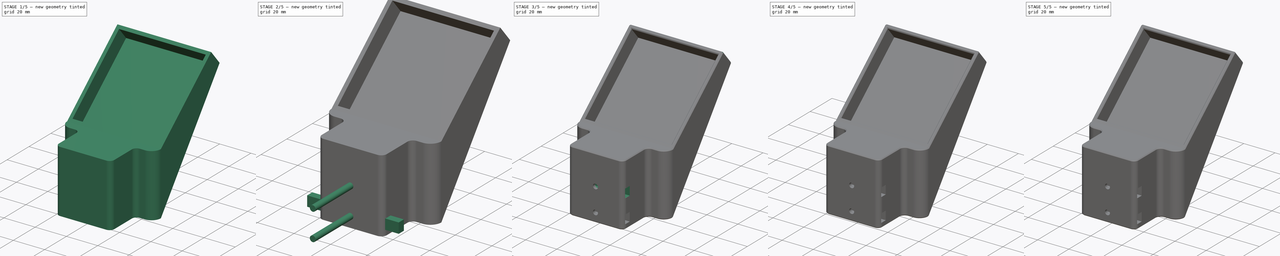
[diagram: build sequence overview — one tinted view per stage of 5, left to right]
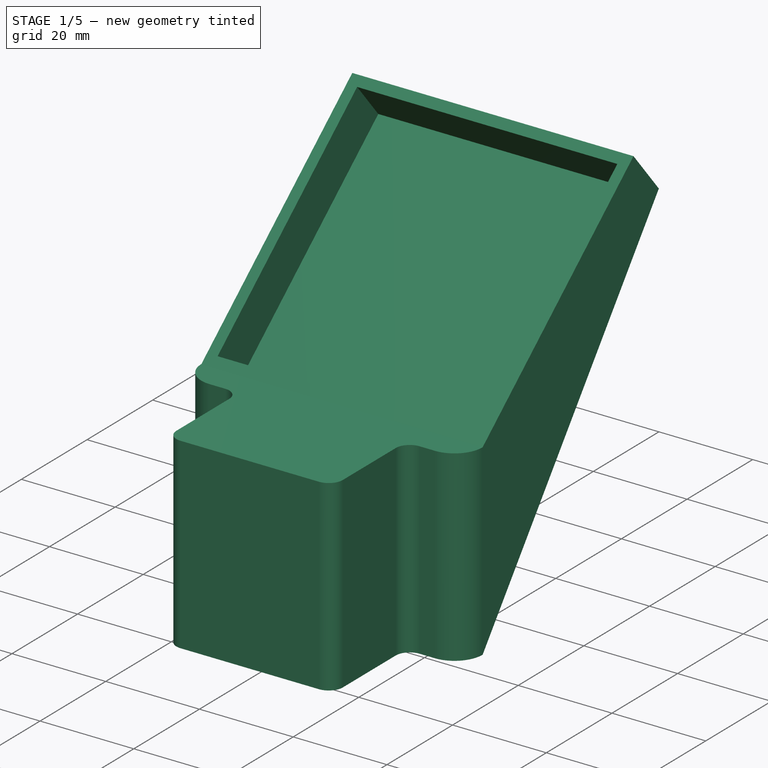
[diagram: stage 1 of 5 — iso view after this stage's code; geometry added in this stage tinted green]
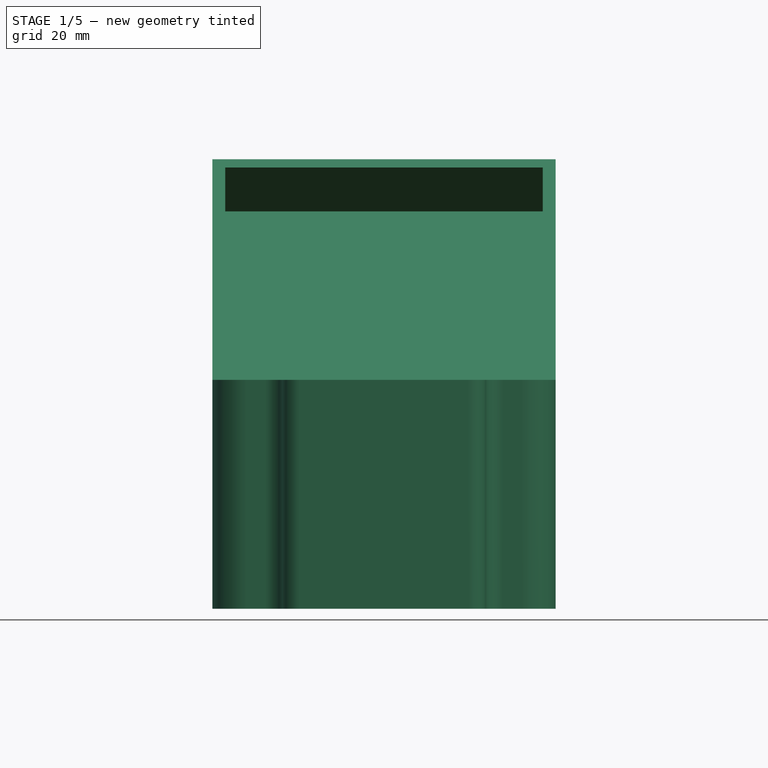
[diagram: stage 1 of 5 — front view after this stage's code; geometry added in this stage tinted green]
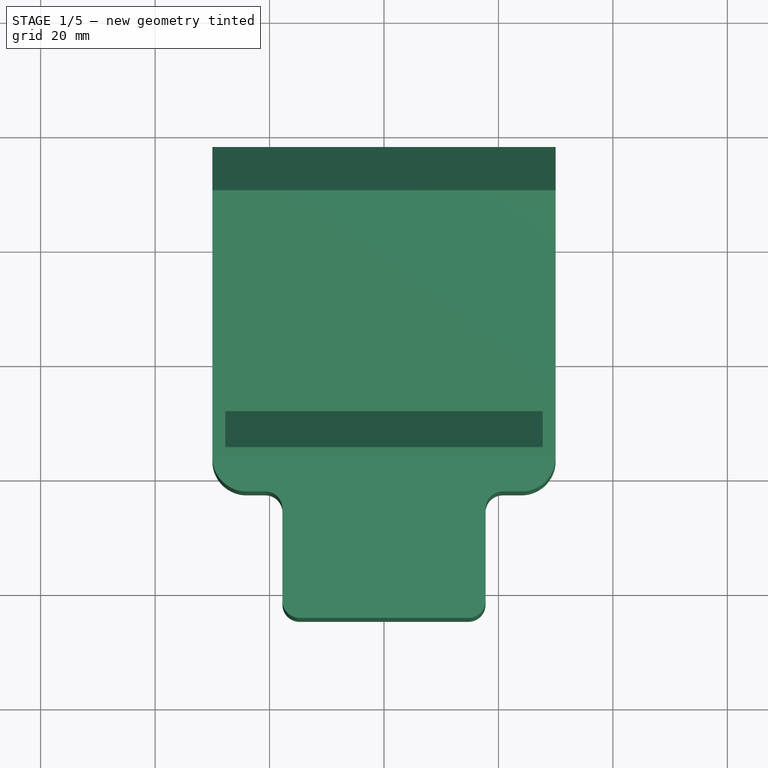
[diagram: stage 1 of 5 — top view after this stage's code; geometry added in this stage tinted green]
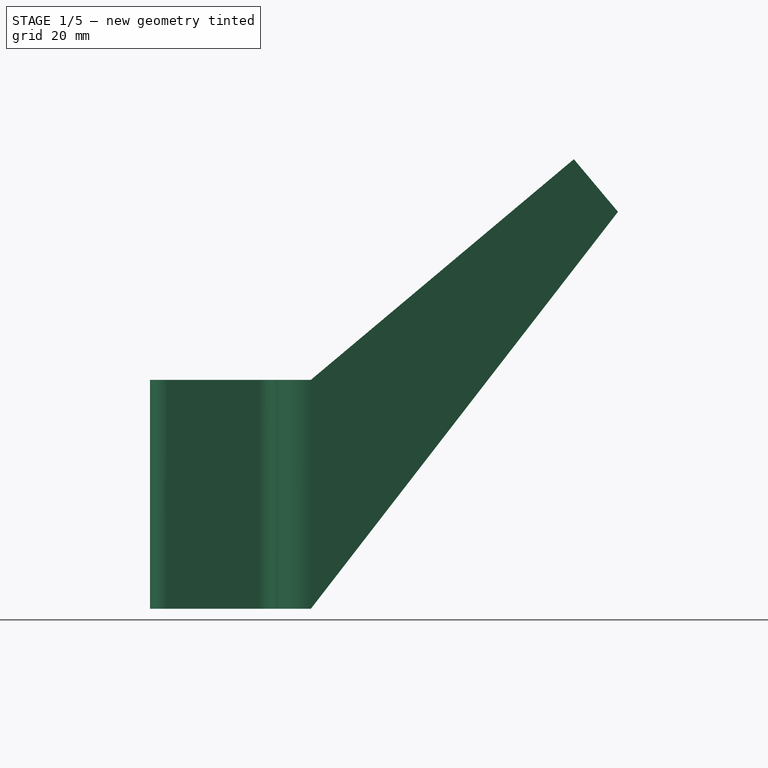
[diagram: stage 1 of 5 — right view after this stage's code; geometry added in this stage tinted green]
FCSTD DOCUMENT  (FreeCAD 0.18R16093 (Git))
Label: tmp_ctl_holder
License: All rights reserved
LicenseURL: http://en.wikipedia.org/wiki/All_rights_reserved
objects: Sketcher::SketchObject×6, Part::MultiFuse×4, Part::Cylinder×3, PartDesign::FeatureBase×3, PartDesign::Body×3, Part::Extrusion×2, Part::Cut×2, Part::Chamfer×2, Part::Box×1, Part::Mirroring×1, Part::Fillet×1, PartDesign::ShapeBinder×1, PartDesign::Line×1, PartDesign::Plane×1, PartDesign::Pad×1, PartDesign::Pocket×1
note: 35 computed .brp shape members not serialized (recipe doc carries the construction recipe); baked Part::Feature solids carry a one-line shape summary decoded from their .brp

FEATURE [Sketcher::SketchObject] Sketch001
  MapMode = 5
  Support = -> [XY_Plane]
  sketch-geometry (12):
    g0: ArcOfCircle CenterX=-14.75 CenterY=-21.65 CenterZ=0 NormalX=0 NormalY=0 NormalZ=1 AngleXU=0 Radius=3 StartAngle=3.14159 EndAngle=4.71239
    g1: ArcOfCircle CenterX=14.75 CenterY=-21.65 CenterZ=0 NormalX=0 NormalY=0 NormalZ=1 AngleXU=0 Radius=3 StartAngle=4.71239 EndAngle=6.28319
    g2: LineSegment StartX=-14.75 StartY=-24.65 StartZ=0 EndX=14.75 EndY=-24.65 EndZ=0
    g3: LineSegment StartX=-17.75 StartY=-21.65 StartZ=0 EndX=-17.75 EndY=-5.65 EndZ=0
    g4: LineSegment StartX=17.75 StartY=-21.65 StartZ=0 EndX=17.75 EndY=-5.65 EndZ=0
    g5: ArcOfCircle CenterX=-20.7482 CenterY=-5.54638 CenterZ=0 NormalX=0 NormalY=0 NormalZ=1 AngleXU=0 Radius=3 StartAngle=6.24864 EndAngle=7.85398
    g6: ArcOfCircle CenterX=20.7482 CenterY=-5.54638 CenterZ=0 NormalX=0 NormalY=0 NormalZ=1 AngleXU=0 Radius=3 StartAngle=1.5708 EndAngle=3.17614
    g7: ArcOfCircle CenterX=-24 CenterY=3.45362 CenterZ=0 NormalX=0 NormalY=0 NormalZ=1 AngleXU=0 Radius=6 StartAngle=3.14159 EndAngle=4.71239
    g8: ArcOfCircle CenterX=24 CenterY=3.45362 CenterZ=0 NormalX=0 NormalY=0 NormalZ=1 AngleXU=0 Radius=6 StartAngle=4.71239 EndAngle=6.28319
    g9: LineSegment StartX=-30 StartY=3.45362 StartZ=0 EndX=30 EndY=3.45362 EndZ=0
    g10: LineSegment StartX=-24 StartY=-2.54638 StartZ=0 EndX=-20.7482 EndY=-2.54638 EndZ=0
    g11: LineSegment StartX=20.7482 StartY=-2.54638 StartZ=0 EndX=24 EndY=-2.54638 EndZ=0
  constraints (36):
    c: Tangent(g2,g0) = -1.5708
    c: Horizontal(g2)
    c: Tangent(g1,g2) = -1.5708
    c: Equal(g0,g1)
    c: Horizontal(g0,g0)
    c: Symmetric(g0,g1,g-2)
    c: Radius(g0) = 3
    c: DistanceX(g0,g1) = 35.5
    c: Vertical(g3)
    c: Coincident(g3,g0)
    c: Coincident(g1,g4)
    c: Symmetric(g4,g3,g-2)
    c: Coincident(g6,g4)
    c: Coincident(g5,g3)
    c: Symmetric(g6,g5,g-2)
    c: Radius(g5) = 3
    c: Symmetric(g5,g6,g-2)
    c: DistanceY(g3,g3) = 16
    c: Radius(g7) = 6
    c: Symmetric(g8,g7,g-2)
    c: Coincident(g9,g7)
    c: Coincident(g9,g8)
    c: Horizontal(g9)
    c: DistanceY(g1,g-1) = 24.65
    c: Horizontal(g7,g7)
    c: Coincident(g10,g7)
    c: Coincident(g10,g5)
    c: Horizontal(g10)
    c: DistanceX(g5) = -20.7482
    c: Vertical(g7,g7)
    c: Symmetric(g7,g8,g-2)
    c: Vertical(g5,g5)
    c: Coincident(g11,g6)
    c: Coincident(g11,g8)
    c: Horizontal(g11)
    c: DistanceX(g9,g9) = 60
FEATURE [Part::Extrusion] Extrude001
  Base = -> Sketch001
  Dir = (0,0,1)
  DirMode = 2
  FaceMakerClass = Part::FaceMakerBullseye
  LengthFwd = 40
  LengthRev = 0
  Solid = true
  Symmetric = false
FEATURE [PartDesign::ShapeBinder] CopyExtrude001
  Placement = pos=(0,0,40) rot=(0,0,1;0rad)
  TraceSupport = false
FEATURE [PartDesign::Line] DatumLine
  AttacherType = Attacher::AttachEngineLine
  MapMode = 29
  Placement = pos=(0,3.45362,40) rot=(0.57735,0.57735,0.57735;2.0944rad)
  Support = -> [CopyExtrude001]
FEATURE [PartDesign::Plane] DatumPlane
  AttachmentOffset = pos=(0,0,0) rot=(0,1,0;0.698132rad)
  Length = 136.517
  MapMode = 3
  Placement = pos=(0,3.45362,40) rot=(0.684791,0.684791,0.249244;3.63013rad)
  ResizeMode = 0
  Support = -> [DatumLine]
  Width = 76.9406
FEATURE [Sketcher::SketchObject] Sketch
  MapMode = 5
  Placement = pos=(0,3.45362,40) rot=(0.684791,0.684791,0.249244;3.63013rad)
  Support = -> [DatumPlane]
  sketch-geometry (4):
    g0: LineSegment StartX=0 StartY=30 StartZ=0 EndX=60 EndY=30 EndZ=0
    g1: LineSegment StartX=60 StartY=30 StartZ=0 EndX=60 EndY=-30 EndZ=0
    g2: LineSegment StartX=60 StartY=-30 StartZ=0 EndX=0 EndY=-30 EndZ=0
    g3: LineSegment StartX=0 StartY=-30 StartZ=0 EndX=0 EndY=30 EndZ=0
  constraints (11):
    c: Coincident(g0,g1)
    c: Coincident(g1,g2)
    c: Coincident(g2,g3)
    c: Coincident(g3,g0)
    c: Horizontal(g0)
    c: Horizontal(g2)
    c: Vertical(g1)
    c: DistanceY(g3,g3) = 60
    c: Equal(g0,g3)
    c: PointOnObject(g-1,g3)
    c: Symmetric(g0,g3,g-1)
FEATURE [PartDesign::FeatureBase] BaseFeature
  BaseFeature = -> Extrude001
FEATURE [Sketcher::SketchObject] Sketch004
  ExternalGeometry = -> [Sketch,BaseFeature]
  MapMode = 5
  Placement = pos=(0,0,0) rot=(0.57735,0.57735,0.57735;2.0944rad)
  Support = -> [YZ_Plane]
  sketch-geometry (4):
    g0: LineSegment StartX=3.45362 StartY=-1.42e-14 StartZ=0 EndX=3.45362 EndY=40 EndZ=0
    g1: LineSegment StartX=3.45362 StartY=40 StartZ=0 EndX=49.4163 EndY=78.5673 EndZ=0
    g2: LineSegment StartX=49.4163 StartY=78.5673 StartZ=0 EndX=57.1297 EndY=69.3747 EndZ=0
    g3: LineSegment StartX=57.1297 StartY=69.3747 StartZ=0 EndX=3.45362 EndY=-1.42e-14 EndZ=0
  constraints (9):
    c: Coincident(g-4,g0)
    c: Coincident(g0,g-4)
    c: Coincident(g0,g1)
    c: Coincident(g1,g-3)
    c: Coincident(g1,g2)
    c: Coincident(g2,g3)
    c: Coincident(g3,g0)
    c: Distance(g2) = 12
    c: Perpendicular(g1,g2)
FEATURE [PartDesign::Pad] Pad
  BaseFeature = -> BaseFeature
  Length = 60
  Length2 = 100
  Midplane = true
  Profile = -> Sketch004
  Type = 0
FEATURE [Sketcher::SketchObject] Sketch005
  ExternalGeometry = -> [DatumLine,Sketch]
  MapMode = 5
  Placement = pos=(0,3.45362,40) rot=(0.684791,0.684791,0.249244;3.63013rad)
  Support = -> [DatumPlane]
  sketch-geometry (4):
    g0: LineSegment StartX=57.75 StartY=-27.75 StartZ=0 EndX=2.25 EndY=-27.75 EndZ=0
    g1: LineSegment StartX=2.25 StartY=-27.75 StartZ=0 EndX=2.25 EndY=27.75 EndZ=0
    g2: LineSegment StartX=2.25 StartY=27.75 StartZ=0 EndX=57.75 EndY=27.75 EndZ=0
    g3: LineSegment StartX=57.75 StartY=27.75 StartZ=0 EndX=57.75 EndY=-27.75 EndZ=0
  constraints (11):
    c: Coincident(g0,g1)
    c: Coincident(g1,g2)
    c: Coincident(g2,g3)
    c: Coincident(g3,g0)
    c: Horizontal(g0)
    c: Horizontal(g2)
    c: DistanceX(g2,g2) = 55.5
    c: Equal(g1,g2)
    c: Equal(g0,g1)
    c: Symmetric(g1,g0,g-1)
    c: DistanceX(g-4,g1) = 2.25
FEATURE [PartDesign::Pocket] Pocket
  BaseFeature = -> Pad
  Length = 10
  Length2 = 100
  Profile = -> Sketch005
  Reversed = true
  Type = 0
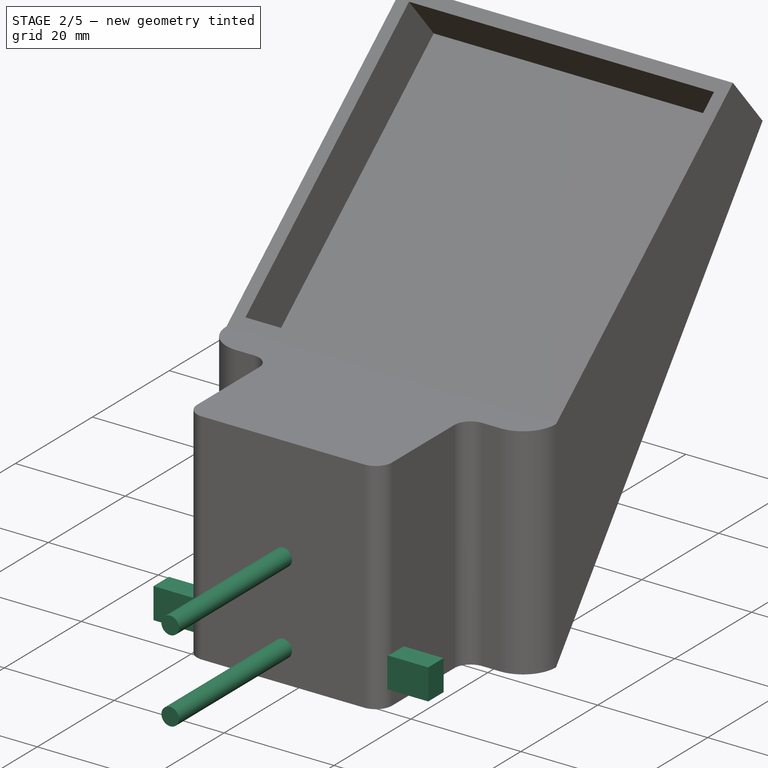
[diagram: stage 2 of 5 — iso view after this stage's code; geometry added in this stage tinted green]
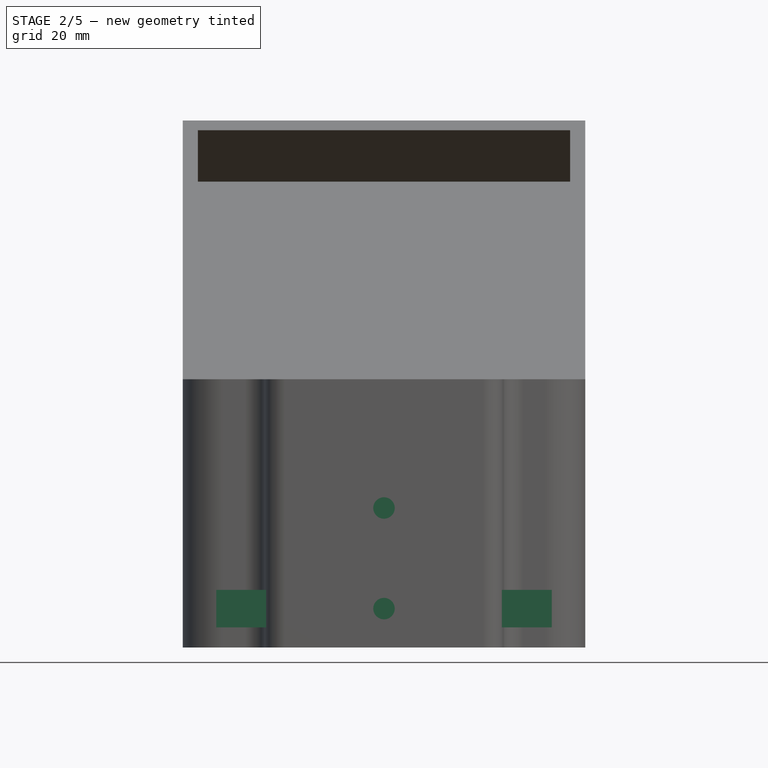
[diagram: stage 2 of 5 — front view after this stage's code; geometry added in this stage tinted green]
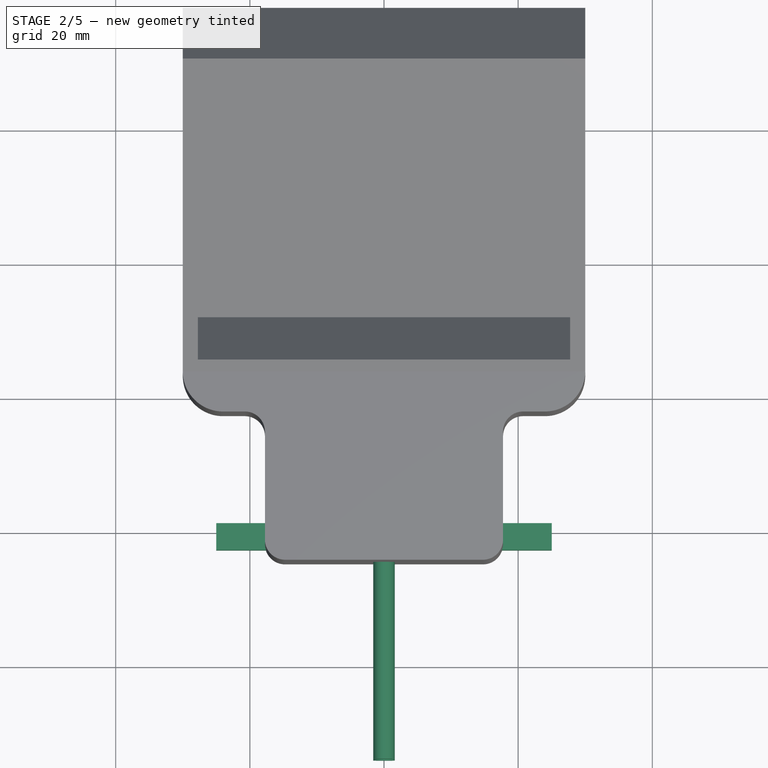
[diagram: stage 2 of 5 — top view after this stage's code; geometry added in this stage tinted green]
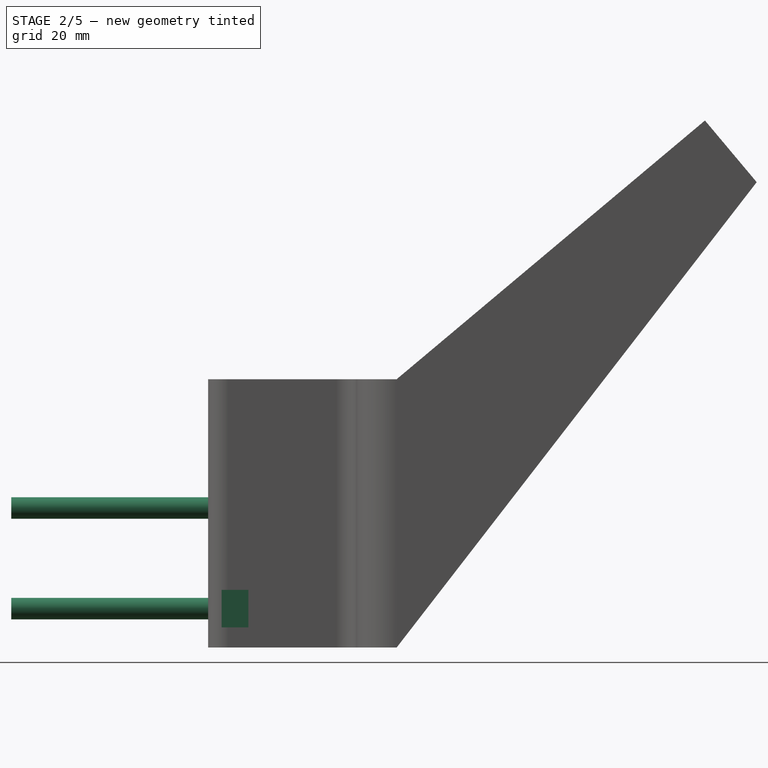
[diagram: stage 2 of 5 — right view after this stage's code; geometry added in this stage tinted green]
FEATURE [Sketcher::SketchObject] Sketch002
  ExternalGeometry = -> [Sketch001]
  MapMode = 5
  Support = -> [XY_Plane]
  sketch-geometry (4):
    g0: LineSegment StartX=-25 StartY=-18.65 StartZ=0 EndX=25 EndY=-18.65 EndZ=0
    g1: LineSegment StartX=25 StartY=-18.65 StartZ=0 EndX=25 EndY=-22.65 EndZ=0
    g2: LineSegment StartX=25 StartY=-22.65 StartZ=0 EndX=-25 EndY=-22.65 EndZ=0
    g3: LineSegment StartX=-25 StartY=-22.65 StartZ=0 EndX=-25 EndY=-18.65 EndZ=0
  constraints (11):
    c: Coincident(g0,g1)
    c: Coincident(g1,g2)
    c: Coincident(g2,g3)
    c: Coincident(g3,g0)
    c: Horizontal(g0)
    c: Vertical(g1)
    c: Vertical(g3)
    c: DistanceY(g-3,g2) = 2
    c: DistanceY(g3,g3) = 4
    c: Symmetric(g2,g1,g-2)
    c: DistanceX(g0,g0) = 50
FEATURE [Part::Extrusion] Extrude002  label="nutspace"
  Base = -> Sketch002
  Dir = (0,0,1)
  DirMode = 2
  FaceMakerClass = Part::FaceMakerBullseye
  LengthFwd = 5.6
  LengthRev = 0
  Placement = pos=(0,0,3) rot=(0,0,1;0rad)
  Solid = true
  Symmetric = false
FEATURE [PartDesign::Body] Body001  label="nutspace2"
  BaseFeature = -> Extrude002
  Group = -> [Clone]
  Origin = -> Origin001
  Placement = pos=(0,0,18) rot=(0,0,1;0rad)
  Tip = -> Clone
  expr: Placement.Base.z = 3 + 15
FEATURE [Sketcher::SketchObject] Sketch003
  MapMode = 5
  Support = -> [XY_Plane]
  sketch-geometry (4):
    g0: ArcOfCircle CenterX=0 CenterY=5.33906 CenterZ=0 NormalX=0 NormalY=0 NormalZ=1 AngleXU=0 Radius=19 StartAngle=0.0413206 EndAngle=3.10027
    g1: ArcOfCircle CenterX=-15.9863 CenterY=6 CenterZ=0 NormalX=0 NormalY=0 NormalZ=1 AngleXU=0 Radius=3 StartAngle=3.10027 EndAngle=4.71239
    g2: ArcOfCircle CenterX=15.9863 CenterY=6 CenterZ=0 NormalX=0 NormalY=0 NormalZ=1 AngleXU=0 Radius=3 StartAngle=4.71239 EndAngle=6.32451
    g3: LineSegment StartX=-15.9863 StartY=3 StartZ=0 EndX=15.9863 EndY=3 EndZ=0
  constraints (10):
    c: Tangent(g1,g0) = -1.5708
    c: Coincident(g2,g0)
    c: Symmetric(g2,g1,g-2)
    c: Horizontal(g0,g0)
    c: Horizontal(g3)
    c: Tangent(g3,g1) = -1.5708
    c: Coincident(g2,g3)
    c: Radius(g2) = 3
    c: DistanceY(g-1,g2) = 3
    c: Radius(g0) = 19
FEATURE [Part::Cylinder] Cylinder002
  Angle = 360
  AttacherType = Attacher::AttachEngine3D
  Height = 40
  Placement = pos=(0,-14,5.8) rot=(1,0,0;1.5708rad)
  Radius = 1.6
  expr: Placement.Base.z = 5.6 / 2 + 3
  expr: Radius = 3.2 / 2
FEATURE [PartDesign::FeatureBase] Clone001
  BaseFeature = -> Cylinder002
  Placement = pos=(0,-14,5.8) rot=(1,0,0;1.5708rad)
FEATURE [PartDesign::Body] Body002
  BaseFeature = -> Cylinder002
  Group = -> [Clone001]
  Origin = -> Origin002
  Placement = pos=(0,0,15) rot=(0,0,1;0rad)
  Tip = -> Clone001
FEATURE [Part::MultiFuse] Fusion003  label="M3_screw_holes"
  Shapes = -> [Cylinder002,Body002]
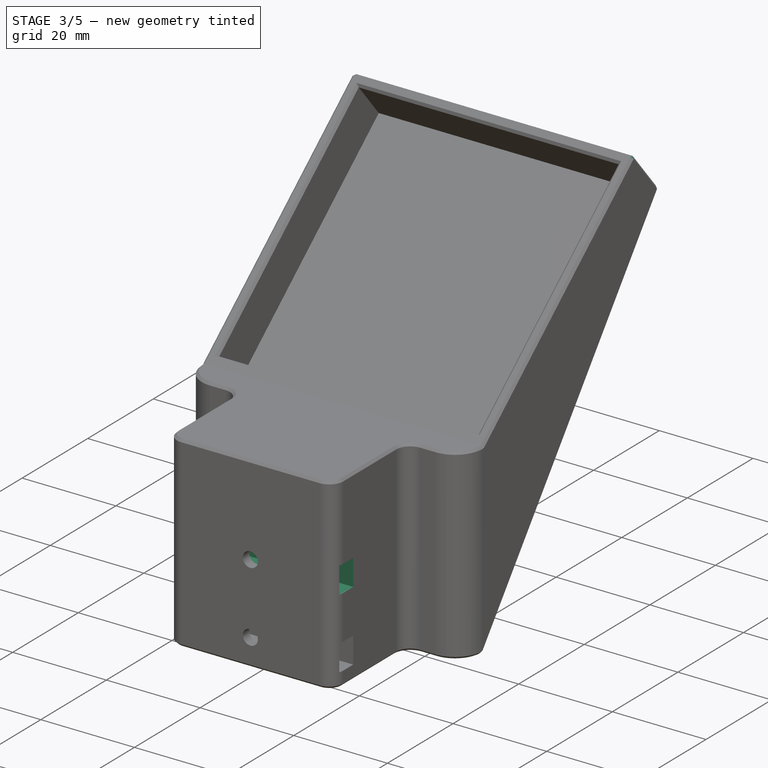
[diagram: stage 3 of 5 — iso view after this stage's code; geometry added in this stage tinted green]
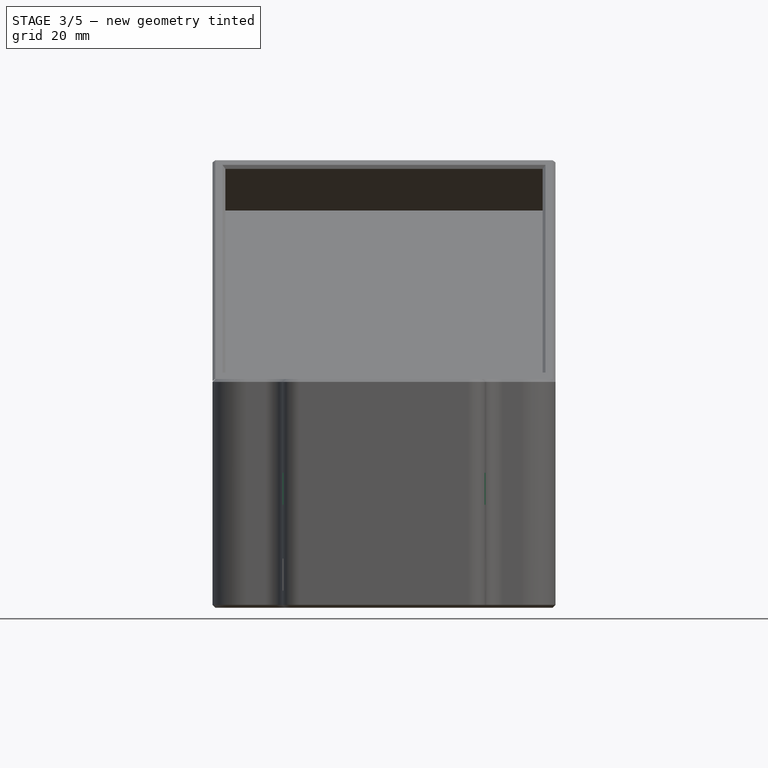
[diagram: stage 3 of 5 — front view after this stage's code; geometry added in this stage tinted green]
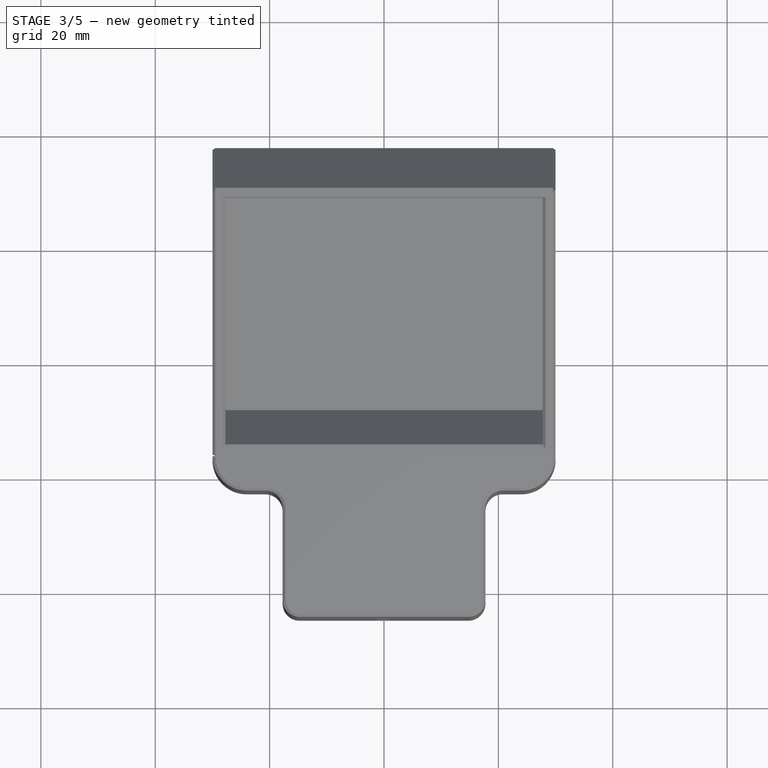
[diagram: stage 3 of 5 — top view after this stage's code; geometry added in this stage tinted green]
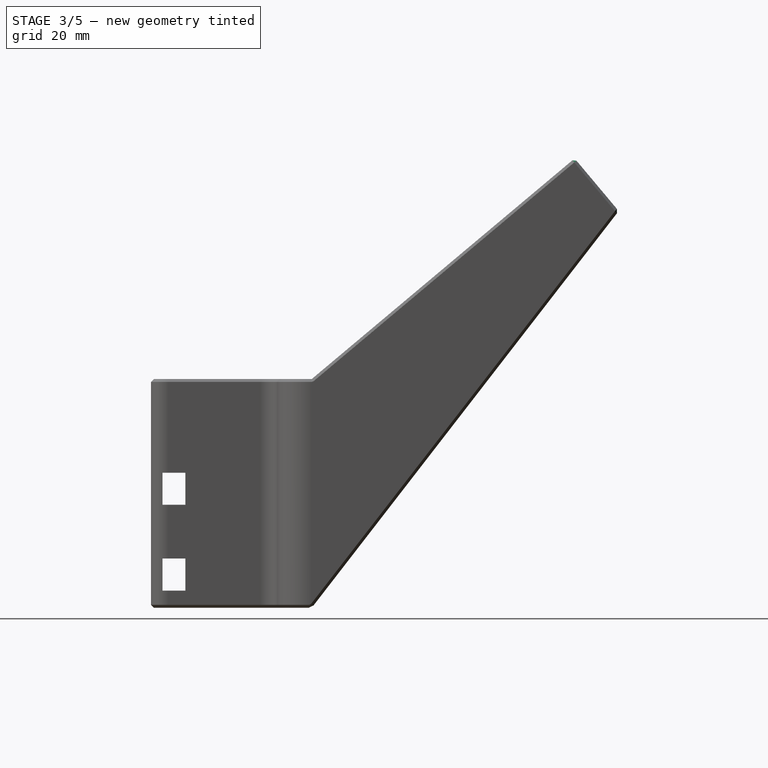
[diagram: stage 3 of 5 — right view after this stage's code; geometry added in this stage tinted green]
FEATURE [Part::Cylinder] Cylinder001
  Angle = 360
  AttacherType = Attacher::AttachEngine3D
  Height = 10
  Placement = pos=(-7.5,0,2) rot=(0,0,1;0rad)
  Radius = 3.6
  expr: Placement.Base.x = -15 / 2
  expr: Radius = 7.2 / 2
FEATURE [PartDesign::FeatureBase] Clone
  BaseFeature = -> Extrude002
FEATURE [Part::MultiFuse] Fusion002  label="M3_nut_inserts"
  Shapes = -> [Extrude002,Body001,Fusion003]
FEATURE [PartDesign::Body] Body
  BaseFeature = -> Extrude001
  Group = -> [BaseFeature,Sketch001,Sketch002,Sketch003,DatumLine,CopyExtrude001,DatumPlane,Sketch,Sketch004,Pad,Sketch005,Pocket]
  Origin = -> Origin
  Tip = -> Pocket
FEATURE [Part::Cut] Cut
  Base = -> Body
  Tool = -> Fusion002
FEATURE [Part::Chamfer] Chamfer001
  Base = -> Cut
  Edges = 35 edges r=0.5: [Edge1,Edge3,Edge13,Edge14,Edge15,Edge16,Edge17,Edge18,Edge19,Edge20,Edge21,Edge22,Edge23,Edge24,Edge28,Edge29,Edge30,Edge31,Edge32,Edge34,Edge35,Edge36,Edge37,Edge74,Edge75,Edge76,Edge82,Edge83,Edge84,Edge85,Edge86,Edge87,Edge88,Edge91,Edge92]
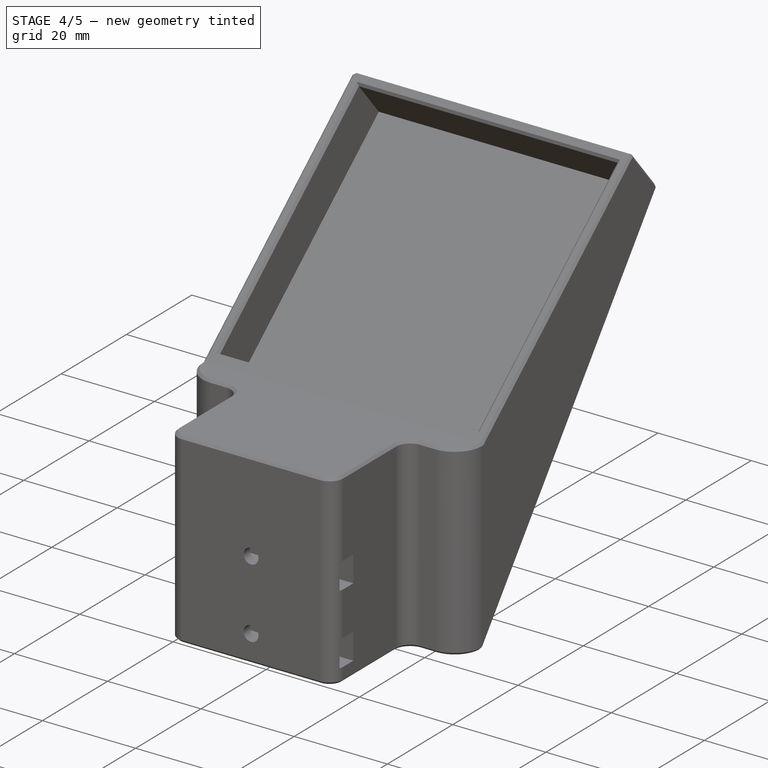
[diagram: stage 4 of 5 — iso view after this stage's code; geometry added in this stage tinted green]
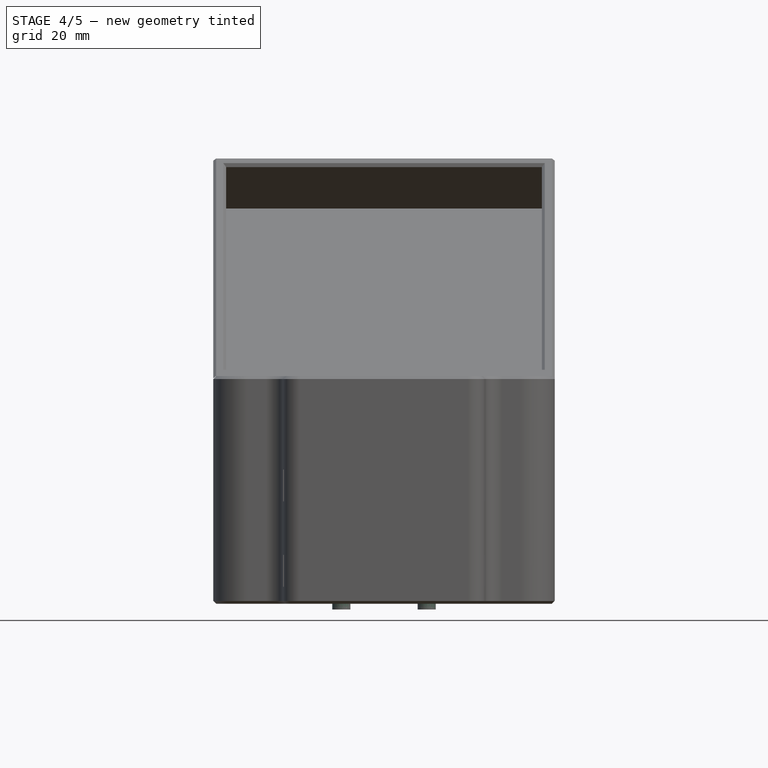
[diagram: stage 4 of 5 — front view after this stage's code; geometry added in this stage tinted green]
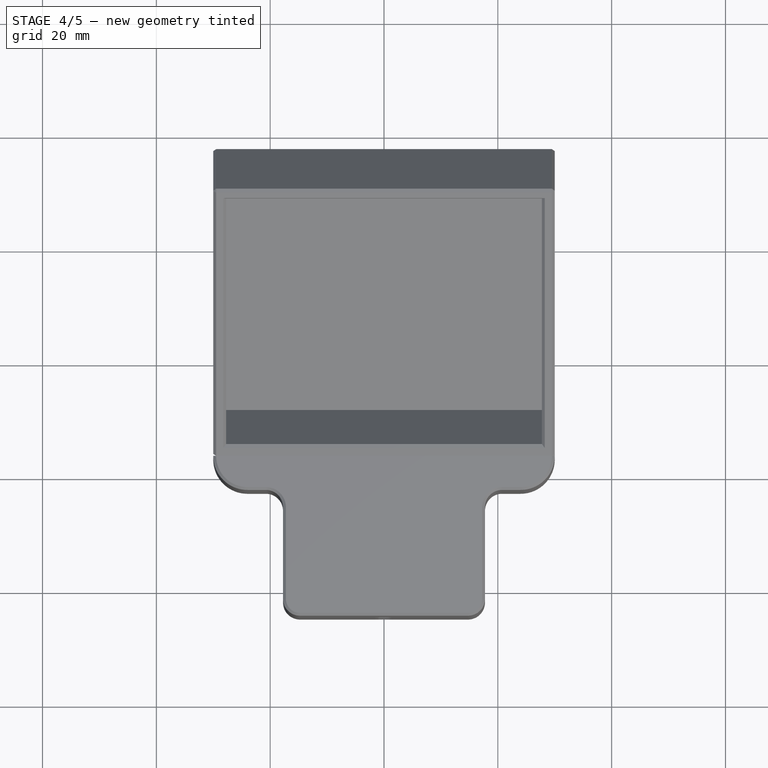
[diagram: stage 4 of 5 — top view after this stage's code; geometry added in this stage tinted green]
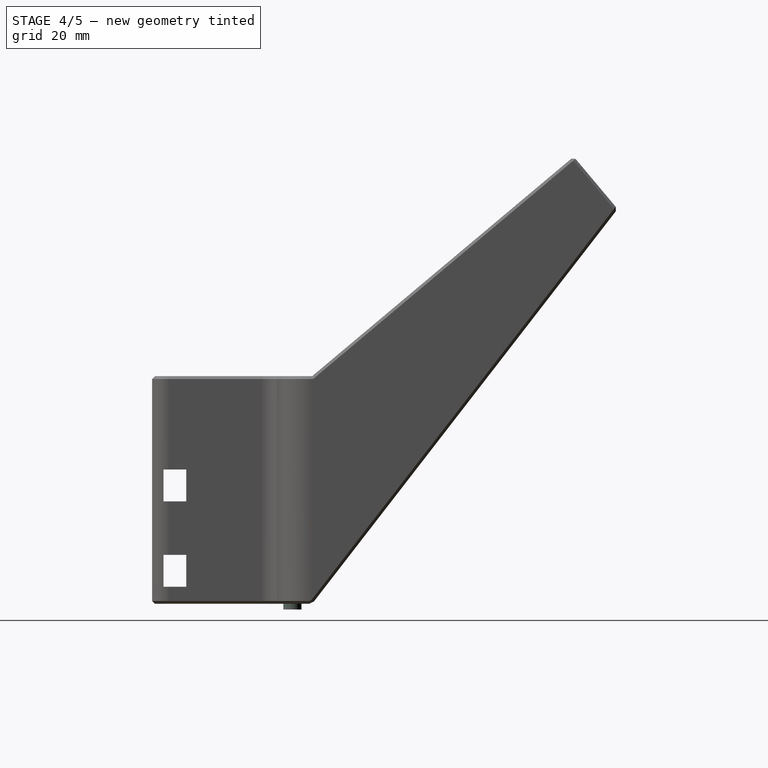
[diagram: stage 4 of 5 — right view after this stage's code; geometry added in this stage tinted green]
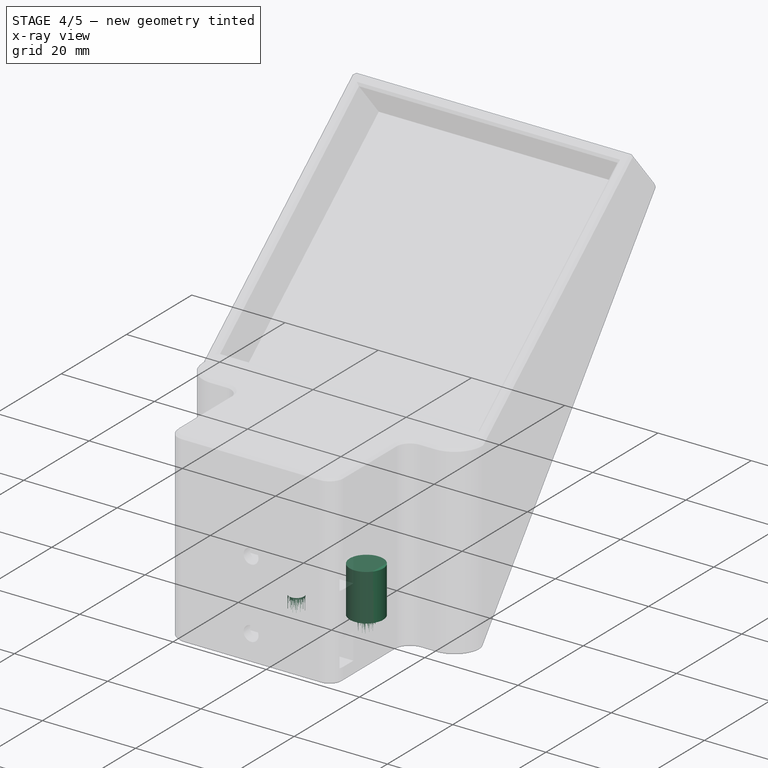
[diagram: stage 4 of 5 — x-ray composite at the iso view; earlier geometry ghosted, this stage's added geometry solid]
FEATURE [Part::Cylinder] Cylinder
  Angle = 360
  AttacherType = Attacher::AttachEngine3D
  Height = 10
  Placement = pos=(-7.5,0,-1) rot=(0,0,1;0rad)
  Radius = 1.6
  expr: Radius = 3.2 / 2
FEATURE [Part::MultiFuse] Fusion
  Shapes = -> [Cylinder,Cylinder001]
FEATURE [Part::Mirroring] Part__Mirroring  label="Fusion (Mirror #1)"
  Base = (0,0,0)
  Normal = (1,0,0)
  Source = -> Fusion
FEATURE [Part::MultiFuse] Fusion001
  Shapes = -> [Fusion,Part__Mirroring]
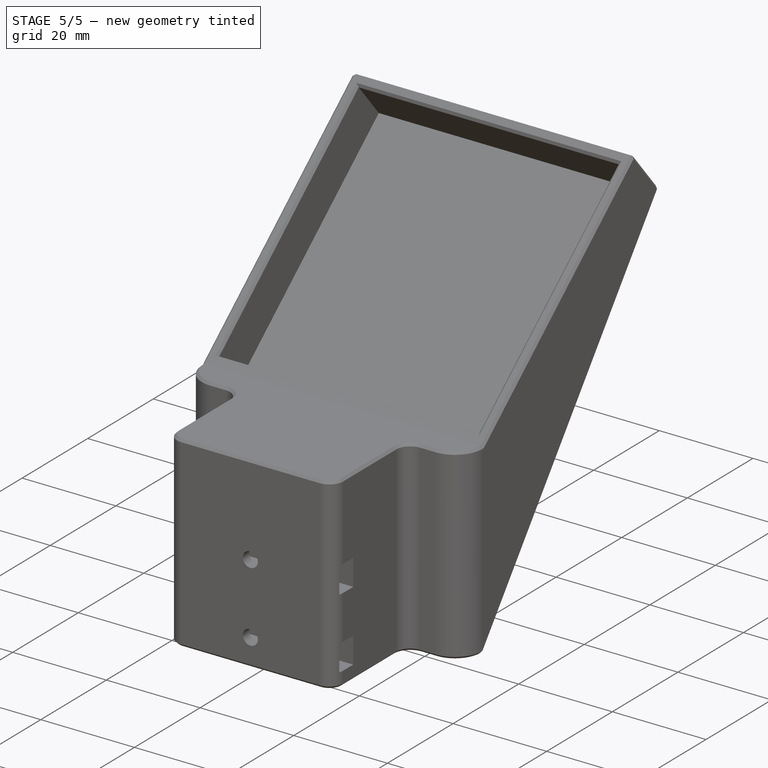
[diagram: stage 5 of 5 — iso view after this stage's code; geometry added in this stage tinted green]
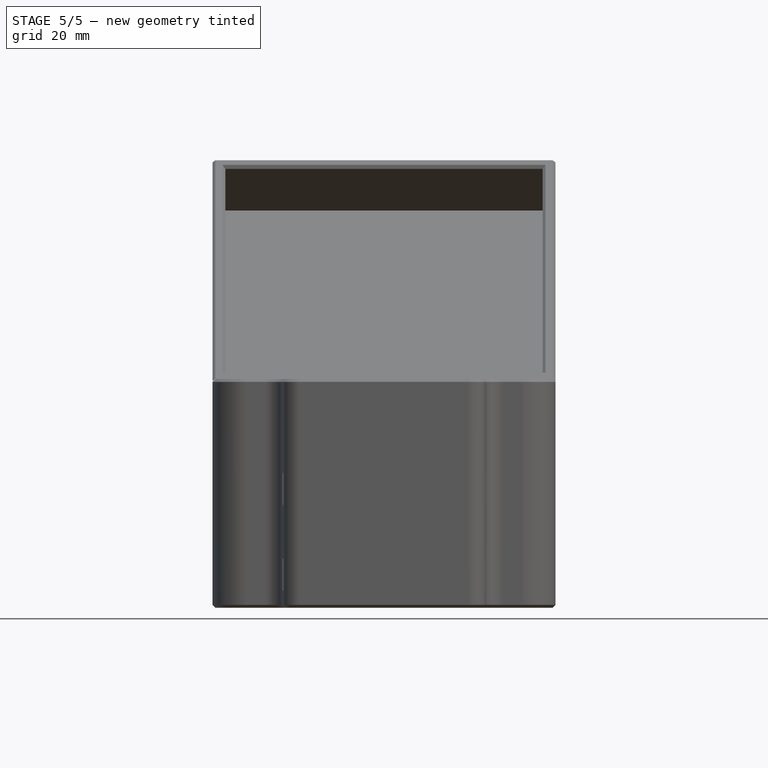
[diagram: stage 5 of 5 — front view after this stage's code; geometry added in this stage tinted green]
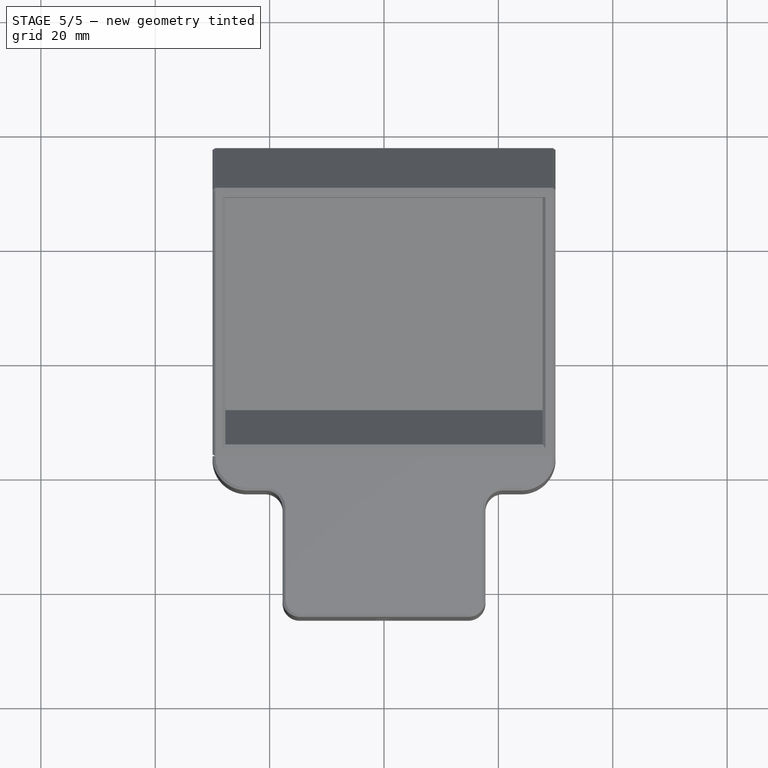
[diagram: stage 5 of 5 — top view after this stage's code; geometry added in this stage tinted green]
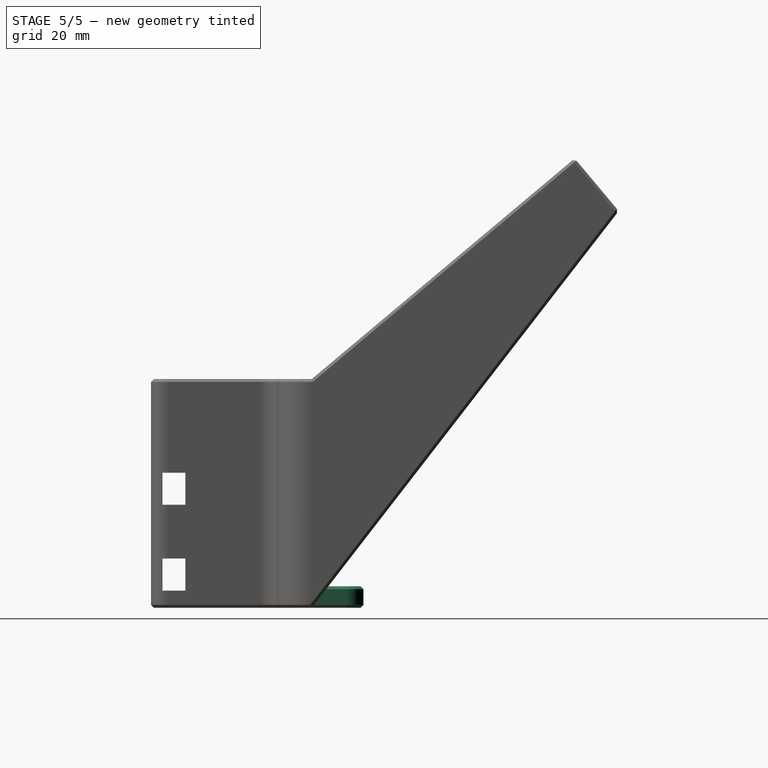
[diagram: stage 5 of 5 — right view after this stage's code; geometry added in this stage tinted green]
FEATURE [Part::Box] Box  label="Cube"
  AttacherType = Attacher::AttachEngine3D
  Height = 3.75
  Length = 35
  Placement = pos=(-17.5,-12.5,0) rot=(0,0,1;0rad)
  Width = 25
  expr: Placement.Base.y = -25 / 2
  expr: Placement.Base.x = -35 / 2
FEATURE [Part::Cut] Cut001
  Base = -> Box
  Tool = -> Fusion001
FEATURE [Part::Fillet] Fillet
  Base = -> Cut001
  Edges = 4 edges r=3: [Edge1,Edge3,Edge6,Edge13]
FEATURE [Part::Chamfer] Chamfer  label="mountplate"
  Base = -> Fillet
  Edges = 20 edges r=0.5: [Edge1,Edge4,Edge5,Edge6,Edge7,Edge8,Edge9,Edge10,Edge11,Edge12,Edge13,Edge14,Edge16,Edge18,Edge19,Edge20,Edge21,Edge22,Edge23,Edge24]
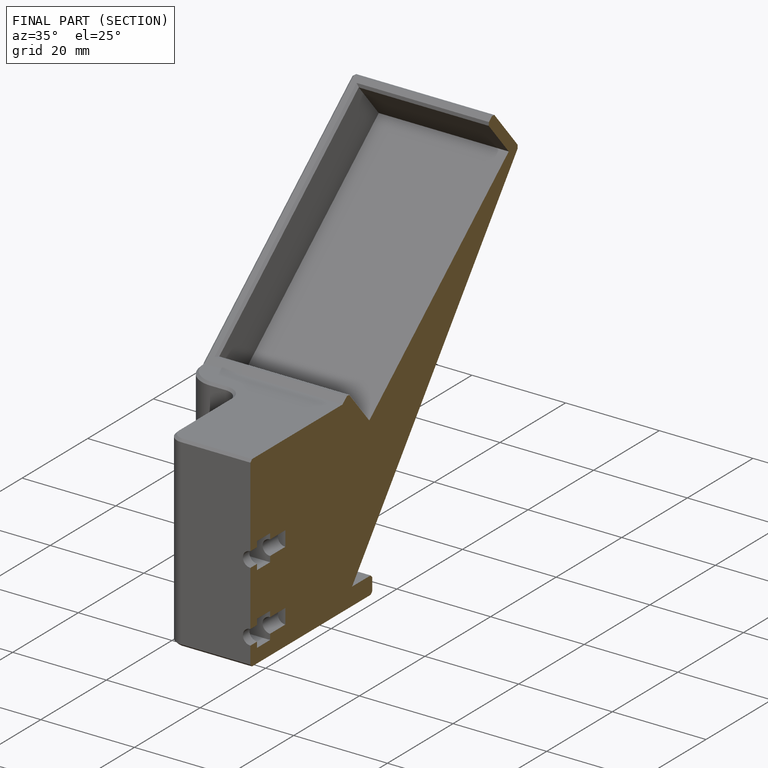
[diagram: finished part — half-section view (interior)]
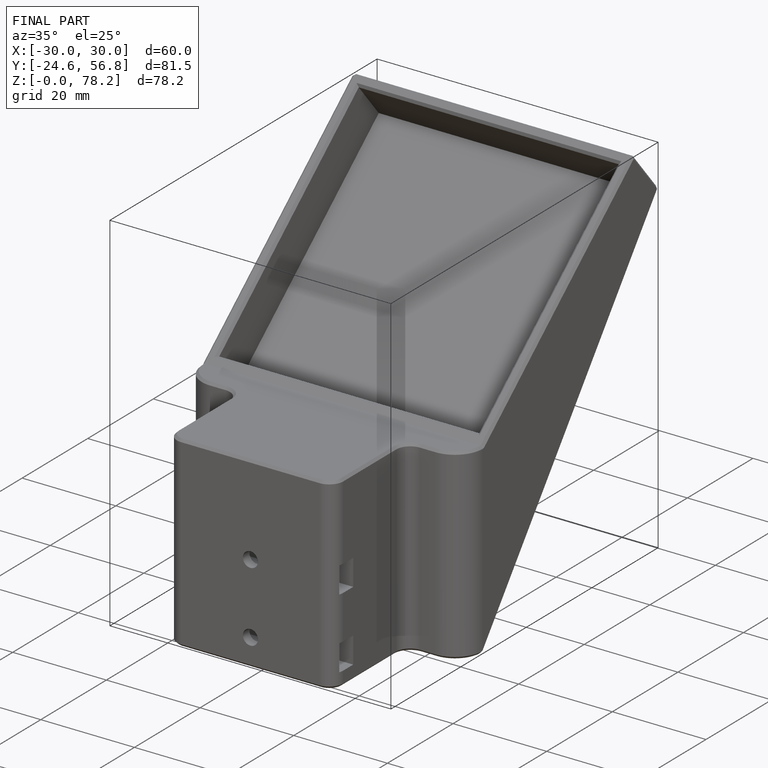
[diagram: finished part — iso view with bounding-box wireframe]
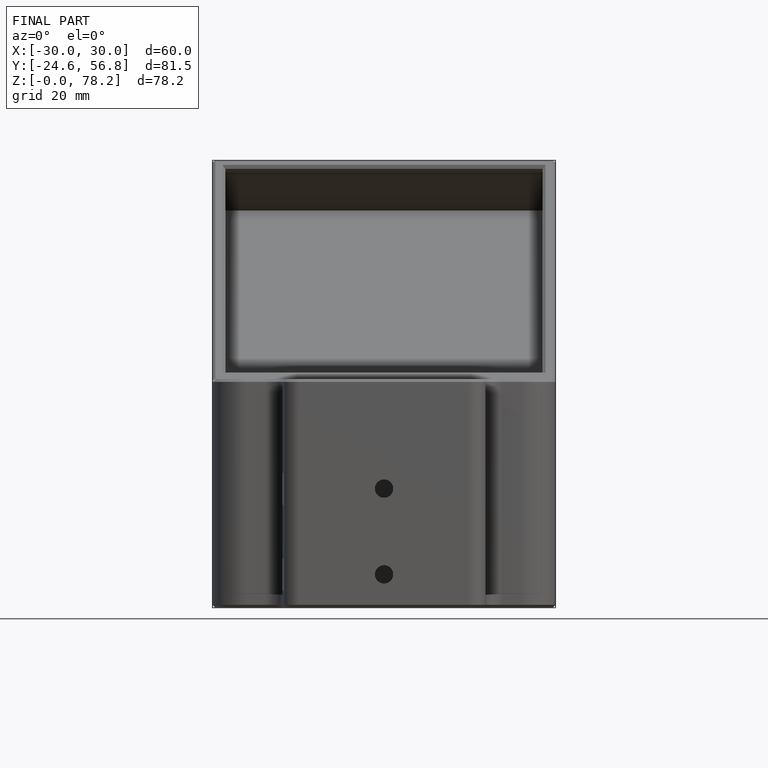
[diagram: finished part — front view with bounding-box wireframe]
